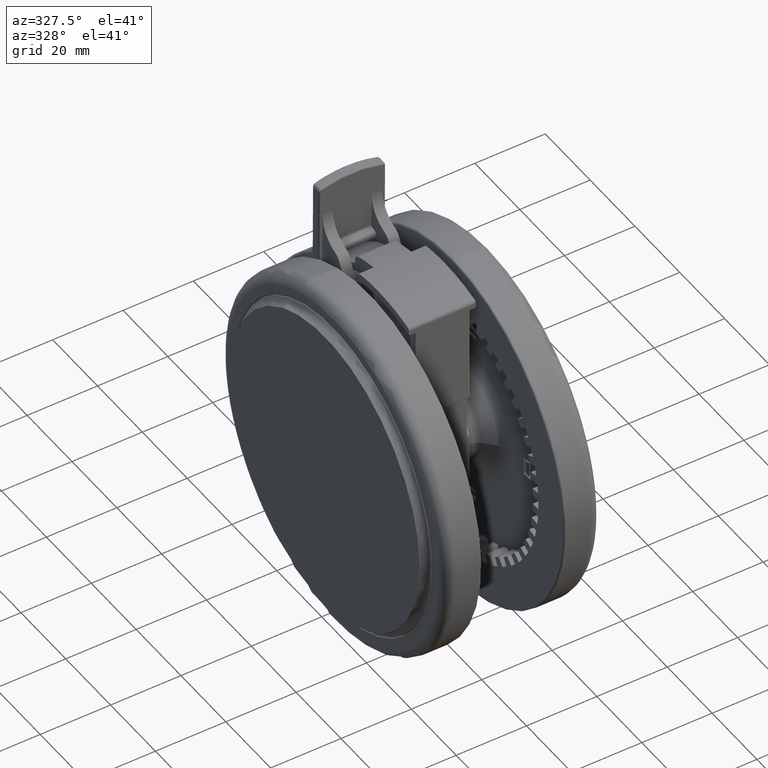
[diagram: clean part render]
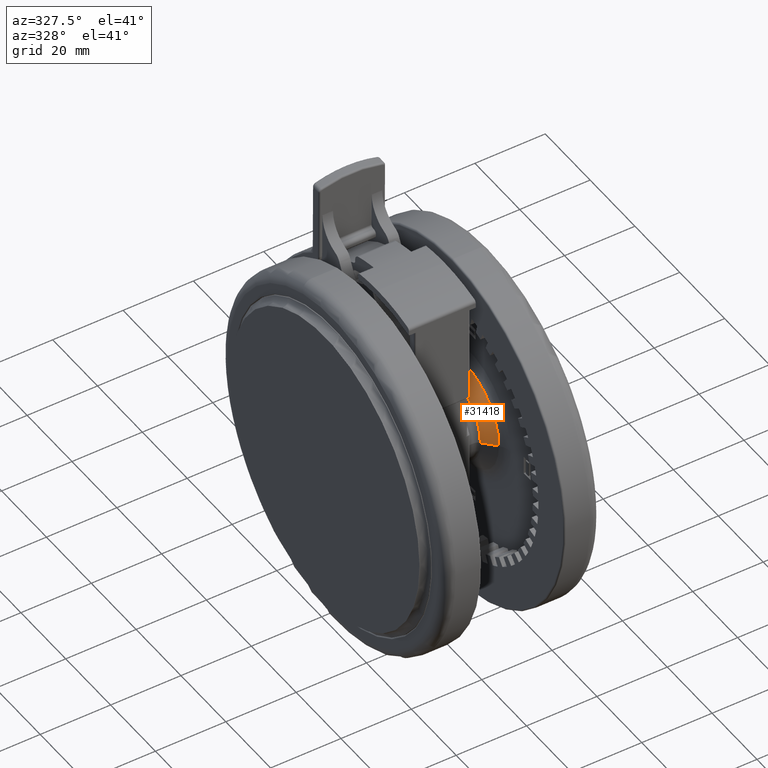
[diagram: same view with one face highlighted and labeled with its STEP entity id]
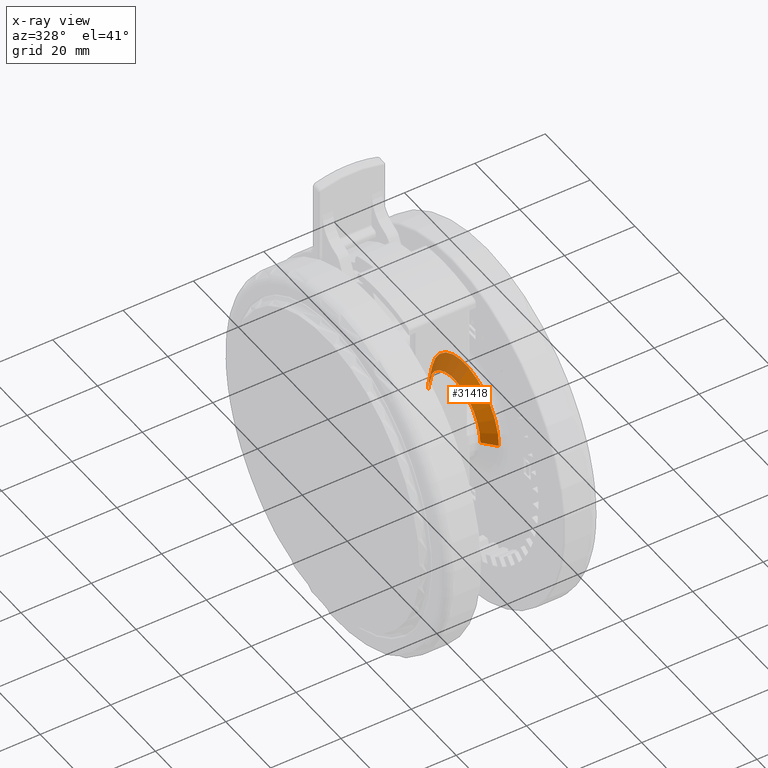
[diagram: x-ray of the same camera — body ghosted, the highlighted face saturated]
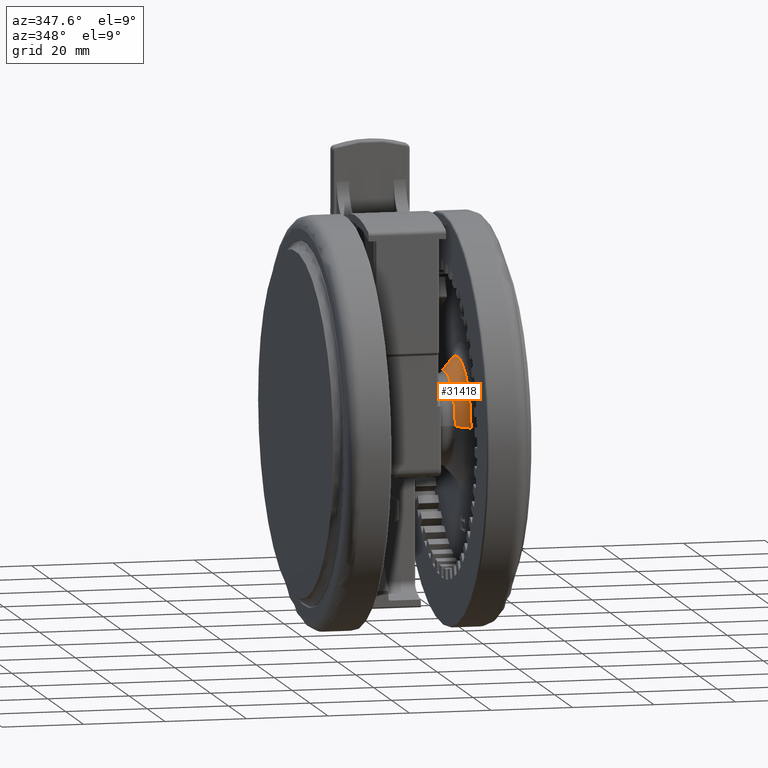
[diagram: same view with one face highlighted and labeled with its STEP entity id]
A machine part, auxiliary view. The second image highlights one B-rep face of the part: STEP entity #31418.
The next image is the same camera in x-ray: the body ghosted, the highlighted face saturated — about 33% of this face is hidden behind the body in this view.
A second angle (auxiliary view) of the same face is appended — the face is thin or edge-on in the first view.
In plain terms, the highlighted conical surface has half-angle 47.726 deg.
Its self-contained STEP definition (entity closure, byte-faithful):
#427 = DIRECTION ( 'NONE',  ( 3.536076908054703600E-017, -0.7399400733959440300, 0.6726727939963120800 ) ) ;
#6250 = ORIENTED_EDGE ( 'NONE', *, *, #22796, .T. ) ;
#8663 = AXIS2_PLACEMENT_3D ( 'NONE', #9122, #35550, #12925 ) ;
#9122 = CARTESIAN_POINT ( 'NONE',  ( -1.405650446830933600E-014, 1.287725246413426900E-015, -12.00485962544778200 ) ) ;
#9715 = VERTEX_POINT ( 'NONE', #47324 ) ;
#9937 = VERTEX_POINT ( 'NONE', #33939 ) ;
#10292 = AXIS2_PLACEMENT_3D ( 'NONE', #11544, #37987, #15329 ) ;
#11544 = CARTESIAN_POINT ( 'NONE',  ( -1.399049068356119500E-014, 7.911710182845832200E-016, -8.900299633020219800 ) ) ;
#12133 = DIRECTION ( 'NONE',  ( -1.509229262741578900E-016, 1.000000000000000000, 0.0000000000000000000 ) ) ;
#12925 = DIRECTION ( 'NONE',  ( -1.509229262741581400E-016, 1.000000000000000000, 0.0000000000000000000 ) ) ;
#12982 = VECTOR ( 'NONE', #22608, 1000.000000000000100 ) ;
#15329 = DIRECTION ( 'NONE',  ( -1.509229262741579100E-016, 1.000000000000000000, 0.0000000000000000000 ) ) ;
#15339 = VERTEX_POINT ( 'NONE', #37284 ) ;
#15938 = CARTESIAN_POINT ( 'NONE',  ( -1.406915923055469400E-014, 1.194656626799991000E-015, -12.59999999999993900 ) ) ;
#17998 = CIRCLE ( 'NONE', #8663, 11.65465441200737500 ) ;
#19931 = VECTOR ( 'NONE', #427, 1000.000000000000100 ) ;
#20730 = CIRCLE ( 'NONE', #10292, 15.06967040367769400 ) ;
#22608 = DIRECTION ( 'NONE',  ( -9.737054896379517700E-017, 0.7399400733959441400, 0.6726727939963119700 ) ) ;
#22796 = EDGE_CURVE ( 'NONE', #15339, #37268, #17998, .T. ) ;
#23060 = LINE ( 'NONE', #48975, #12982 ) ;
#24133 = EDGE_LOOP ( 'NONE', ( #35951, #6250, #31775, #27140 ) ) ;
#24495 = CONICAL_SURFACE ( 'NONE', #28638, 11.00000000000000000, 0.8329812666744321700 ) ;
#25653 = FACE_OUTER_BOUND ( 'NONE', #24133, .T. ) ;
#26809 = CARTESIAN_POINT ( 'NONE',  ( -1.375611852060104400E-014, -10.99999999999999800, -12.59999999999993900 ) ) ;
#27140 = ORIENTED_EDGE ( 'NONE', *, *, #40672, .T. ) ;
#27573 = LINE ( 'NONE', #26809, #19931 ) ;
#28638 = AXIS2_PLACEMENT_3D ( 'NONE', #15938, #30981, #12133 ) ;
#30981 = DIRECTION ( 'NONE',  ( 2.126349141558171500E-017, 1.563809541294688800E-016, 1.000000000000000000 ) ) ;
#31418 = ADVANCED_FACE ( 'NONE', ( #25653 ), #24495, .T. ) ;
#31775 = ORIENTED_EDGE ( 'NONE', *, *, #41117, .T. ) ;
#33018 = CARTESIAN_POINT ( 'NONE',  ( -1.724274253896686000E-014, 11.65465441200737700, -12.00485962544778400 ) ) ;
#33939 = CARTESIAN_POINT ( 'NONE',  ( -1.626484943887130300E-014, 15.06967040367769400, -8.900299633020223300 ) ) ;
#35550 = DIRECTION ( 'NONE',  ( 2.126349141558171500E-017, 1.563809541294688800E-016, 1.000000000000000000 ) ) ;
#35951 = ORIENTED_EDGE ( 'NONE', *, *, #47478, .F. ) ;
#37268 = VERTEX_POINT ( 'NONE', #33018 ) ;
#37284 = CARTESIAN_POINT ( 'NONE',  ( -1.229754991973515500E-014, -11.65465441200737300, -12.00485962544778000 ) ) ;
#37987 = DIRECTION ( 'NONE',  ( -2.126349141558171500E-017, -1.563809541294688800E-016, -1.000000000000000000 ) ) ;
#40672 = EDGE_CURVE ( 'NONE', #9937, #9715, #20730, .T. ) ;
#41117 = EDGE_CURVE ( 'NONE', #37268, #9937, #23060, .T. ) ;
#47324 = CARTESIAN_POINT ( 'NONE',  ( -1.356163429065803500E-014, -15.06967040367769600, -8.900299633020218000 ) ) ;
#47478 = EDGE_CURVE ( 'NONE', #15339, #9715, #27573, .T. ) ;
#48975 = CARTESIAN_POINT ( 'NONE',  ( -1.572931141957043100E-014, 11.00000000000000200, -12.59999999999993900 ) ) ;